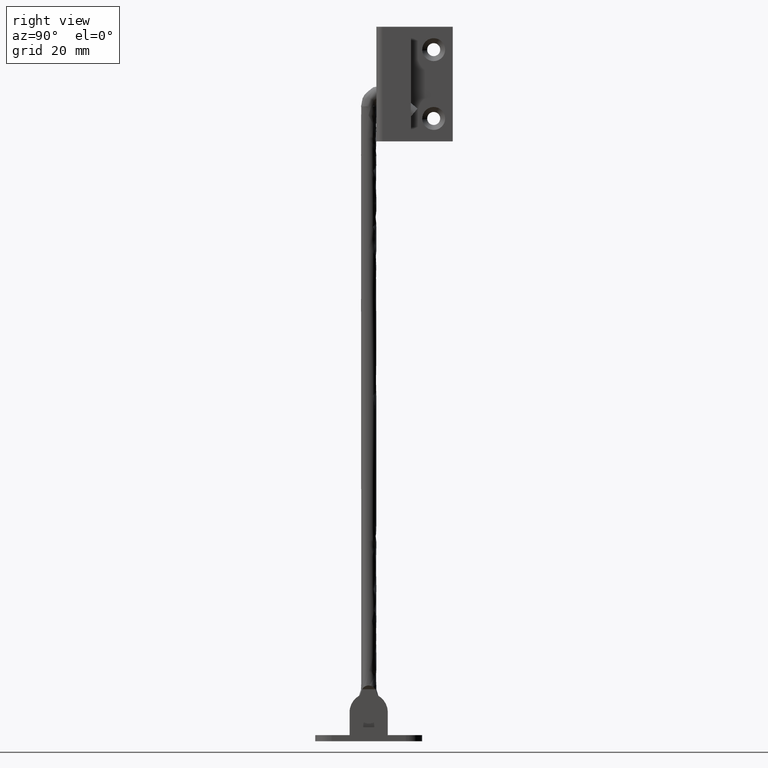
[diagram: clean part render]
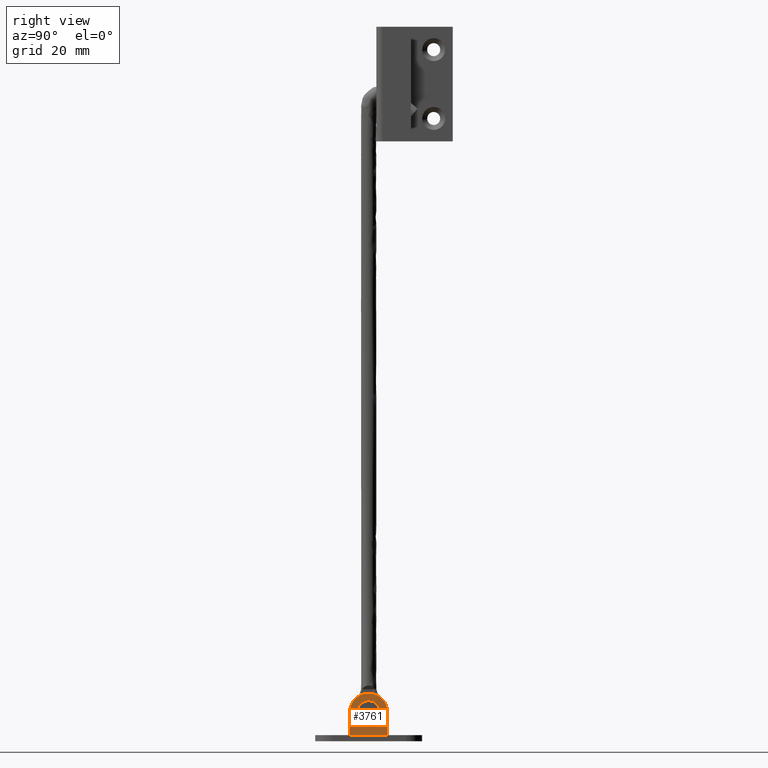
[diagram: same view with one face highlighted and labeled with its STEP entity id]
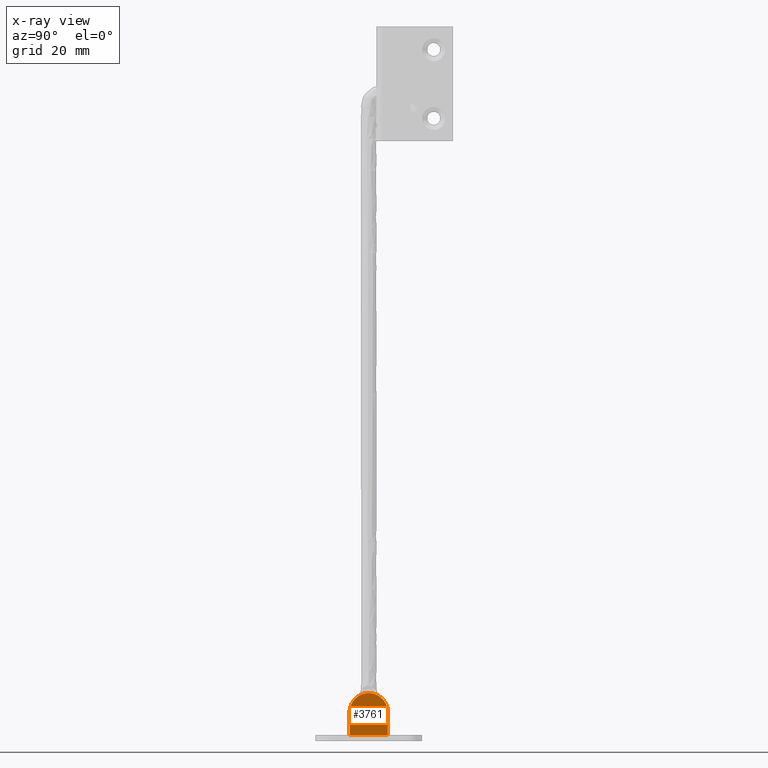
[diagram: x-ray of the same camera — body ghosted, the highlighted face saturated]
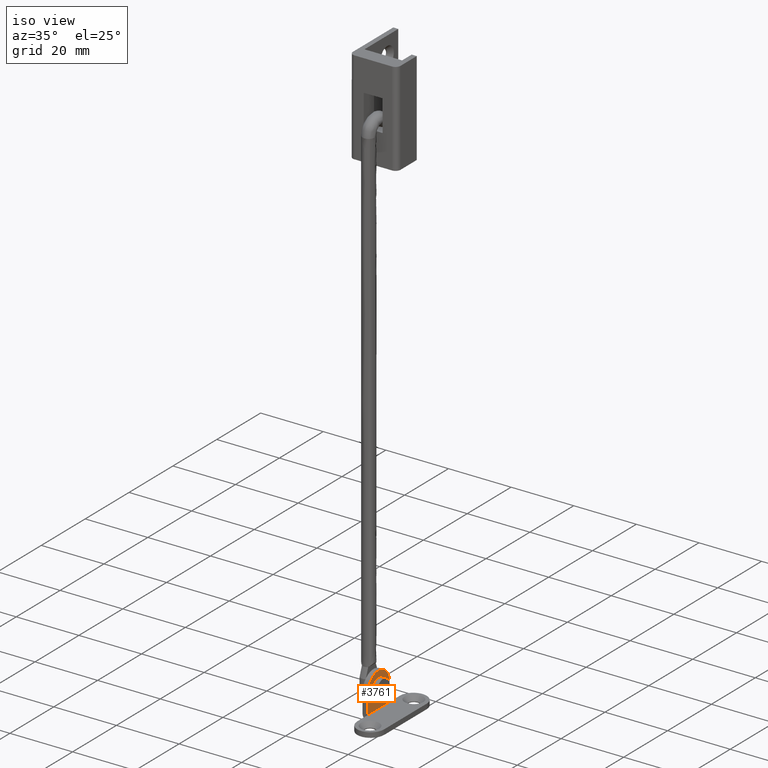
[diagram: same view with one face highlighted and labeled with its STEP entity id]
A machine part, right view. The second image highlights one B-rep face of the part: STEP entity #3761.
The next image is the same camera in x-ray: the body ghosted, the highlighted face saturated — about 0% of this face is hidden behind the body in this view.
A second angle (iso view) of the same face is appended — the face is thin or edge-on in the first view.
In plain terms, the highlighted face is a freeform B-spline surface patch.
Its self-contained STEP definition (entity closure, byte-faithful):
#2752=CARTESIAN_POINT('',(-4.300003000000000,1.497202197499921,7.691570811474840));
#2753=VERTEX_POINT('',#2752);
#2759=CARTESIAN_POINT('',(-4.300003000000000,0.0,9.099997999999999));
#2760=VERTEX_POINT('',#2759);
#2761=CARTESIAN_POINT('',(-4.300003000000000,0.0,9.099997999999999));
#2762=CARTESIAN_POINT('',(-4.300003000000001,1.411059096255789,9.099997999999999));
#2763=CARTESIAN_POINT('',(-4.300003000000000,1.497202197499921,7.691570811474840));
#2771=(BOUNDED_CURVE()B_SPLINE_CURVE(2,(#2761,#2762,#2763),.UNSPECIFIED.,.F.,.U.)B_SPLINE_CURVE_WITH_KNOTS((3,3),(0.500000000000000,0.739332961741212),.UNSPECIFIED.)CURVE()GEOMETRIC_REPRESENTATION_ITEM()RATIONAL_B_SPLINE_CURVE((1.0,0.719603993869838,0.976072040599986))REPRESENTATION_ITEM(''));
#2772=EDGE_CURVE('',#2760,#2753,#2771,.T.);
#2774=CARTESIAN_POINT('',(-4.300003000000000,-1.489514289544645,7.422946648007674));
#2775=VERTEX_POINT('',#2774);
#2776=CARTESIAN_POINT('',(-4.300003000000000,-1.489514289544645,7.422946648007674));
#2777=CARTESIAN_POINT('',(-4.300003000000000,-1.500000000000001,7.511161820514872));
#2778=CARTESIAN_POINT('',(-4.300003000000000,-1.500000000000000,7.599998000000000));
#2779=CARTESIAN_POINT('',(-4.300002999999999,-1.500000000000000,9.099997999999999));
#2780=CARTESIAN_POINT('',(-4.300003000000000,0.0,9.099997999999999));
#2788=(BOUNDED_CURVE()B_SPLINE_CURVE(2,(#2776,#2777,#2778,#2779,#2780),.UNSPECIFIED.,.F.,.U.)B_SPLINE_CURVE_WITH_KNOTS((3,2,3),(0.229562473514013,0.250000000000000,0.500000000000000),.UNSPECIFIED.)CURVE()GEOMETRIC_REPRESENTATION_ITEM()RATIONAL_B_SPLINE_CURVE((0.956026754184688,0.976055948331736,1.0,0.707106781186548,1.0))REPRESENTATION_ITEM(''));
#2789=EDGE_CURVE('',#2775,#2760,#2788,.T.);
#2833=CARTESIAN_POINT('',(-4.300003000000000,0.0,6.099998000000000));
#2834=VERTEX_POINT('',#2833);
#2835=CARTESIAN_POINT('',(-4.300003000000000,0.0,6.099998000000000));
#2836=CARTESIAN_POINT('',(-4.300003000000001,-1.332261788914102,6.099998000000001));
#2837=CARTESIAN_POINT('',(-4.300003000000000,-1.489514289544645,7.422946648007674));
#2845=(BOUNDED_CURVE()B_SPLINE_CURVE(2,(#2835,#2836,#2837),.UNSPECIFIED.,.F.,.U.)B_SPLINE_CURVE_WITH_KNOTS((3,3),(0.0,0.229562473514013),.UNSPECIFIED.)CURVE()GEOMETRIC_REPRESENTATION_ITEM()RATIONAL_B_SPLINE_CURVE((1.0,0.731050832854811,0.956026754184688))REPRESENTATION_ITEM(''));
#2846=EDGE_CURVE('',#2834,#2775,#2845,.T.);
#2848=CARTESIAN_POINT('',(-4.300003000000000,1.497202197499921,7.691570811474840));
#2849=CARTESIAN_POINT('',(-4.300002999999999,1.500000000000000,7.645827147126528));
#2850=CARTESIAN_POINT('',(-4.300003000000000,1.500000000000000,7.599998000000000));
#2851=CARTESIAN_POINT('',(-4.300002999999999,1.500000000000000,6.099998000000000));
#2852=CARTESIAN_POINT('',(-4.300003000000000,0.0,6.099998000000000));
#2860=(BOUNDED_CURVE()B_SPLINE_CURVE(2,(#2848,#2849,#2850,#2851,#2852),.UNSPECIFIED.,.F.,.U.)B_SPLINE_CURVE_WITH_KNOTS((3,2,3),(0.739332961741211,0.750000000000000,1.0),.UNSPECIFIED.)CURVE()GEOMETRIC_REPRESENTATION_ITEM()RATIONAL_B_SPLINE_CURVE((0.976072040599985,0.987502787316709,1.0,0.707106781186548,1.0))REPRESENTATION_ITEM(''));
#2861=EDGE_CURVE('',#2753,#2834,#2860,.T.);
#3648=CARTESIAN_POINT('',(-4.300000000000000,4.999999999999890,1.599997999999900));
#3649=VERTEX_POINT('',#3648);
#3657=CARTESIAN_POINT('',(-4.300003000000000,4.999999999999890,7.599998000000000));
#3658=VERTEX_POINT('',#3657);
#3664=CARTESIAN_POINT('',(-4.300000000000000,4.999999999999890,1.599997999999900));
#3665=CARTESIAN_POINT('',(-4.300003000000000,4.999999999999890,7.599998000000000));
#3666=QUASI_UNIFORM_CURVE('',1,(#3664,#3665),.UNSPECIFIED.,.F.,.U.);
#3667=EDGE_CURVE('',#3649,#3658,#3666,.T.);
#3679=CARTESIAN_POINT('',(-4.300000000000000,-5.0,1.599997999999900));
#3680=VERTEX_POINT('',#3679);
#3686=CARTESIAN_POINT('',(-4.300003000000000,-5.0,7.599998000000000));
#3687=VERTEX_POINT('',#3686);
#3688=CARTESIAN_POINT('',(-4.300003000000000,-5.0,7.599998000000000));
#3689=CARTESIAN_POINT('',(-4.300000000000000,-5.0,1.599997999999900));
#3690=QUASI_UNIFORM_CURVE('',1,(#3688,#3689),.UNSPECIFIED.,.F.,.U.);
#3691=EDGE_CURVE('',#3687,#3680,#3690,.T.);
#3719=CARTESIAN_POINT('',(-4.300003000000000,4.999999999999890,7.599998000000000));
#3720=CARTESIAN_POINT('',(-4.300002999999999,5.000000000000001,12.599998000000003));
#3721=CARTESIAN_POINT('',(-4.300003000000000,0.0,12.599997999999999));
#3722=CARTESIAN_POINT('',(-4.300002999999999,-5.000000000000001,12.599998000000003));
#3723=CARTESIAN_POINT('',(-4.300003000000000,-5.0,7.599998000000000));
#3731=(BOUNDED_CURVE()B_SPLINE_CURVE(2,(#3719,#3720,#3721,#3722,#3723),.UNSPECIFIED.,.F.,.U.)B_SPLINE_CURVE_WITH_KNOTS((3,2,3),(0.0,0.500000000000000,1.0),.UNSPECIFIED.)CURVE()GEOMETRIC_REPRESENTATION_ITEM()RATIONAL_B_SPLINE_CURVE((1.0,0.707106781186548,1.0,0.707106781186548,1.0))REPRESENTATION_ITEM(''));
#3732=EDGE_CURVE('',#3658,#3687,#3731,.T.);
#3740=CARTESIAN_POINT('',(-4.300003000000000,-5.499499980618055,1.050548021320071));
#3741=CARTESIAN_POINT('',(-4.300003000000000,5.499500248838847,1.050548021320071));
#3742=CARTESIAN_POINT('',(-4.300003000000000,-5.499499980618055,13.149448273721990));
#3743=CARTESIAN_POINT('',(-4.300003000000000,5.499500248838847,13.149448273721990));
#3744=B_SPLINE_SURFACE_WITH_KNOTS('',1,1,((#3740,#3742),(#3741,#3743)),.UNSPECIFIED.,.F.,.F.,.U.,(2,2),(2,2),(0.0,10.999000229456900),(0.0,12.098900252401920),.UNSPECIFIED.);
#3745=CARTESIAN_POINT('',(-4.300000000000000,-5.0,1.599997999999900));
#3746=CARTESIAN_POINT('',(-4.300000000000000,4.999999999999890,1.599997999999900));
#3747=QUASI_UNIFORM_CURVE('',1,(#3745,#3746),.UNSPECIFIED.,.F.,.U.);
#3748=EDGE_CURVE('',#3680,#3649,#3747,.T.);
#3749=ORIENTED_EDGE('',*,*,#3748,.T.);
#3750=ORIENTED_EDGE('',*,*,#3667,.T.);
#3751=ORIENTED_EDGE('',*,*,#3732,.T.);
#3752=ORIENTED_EDGE('',*,*,#3691,.T.);
#3753=EDGE_LOOP('',(#3749,#3750,#3751,#3752));
#3754=FACE_OUTER_BOUND('',#3753,.T.);
#3755=ORIENTED_EDGE('',*,*,#2772,.T.);
#3756=ORIENTED_EDGE('',*,*,#2861,.T.);
#3757=ORIENTED_EDGE('',*,*,#2846,.T.);
#3758=ORIENTED_EDGE('',*,*,#2789,.T.);
#3759=EDGE_LOOP('',(#3755,#3756,#3757,#3758));
#3760=FACE_BOUND('',#3759,.T.);
#3761=ADVANCED_FACE('',(#3754,#3760),#3744,.T.);